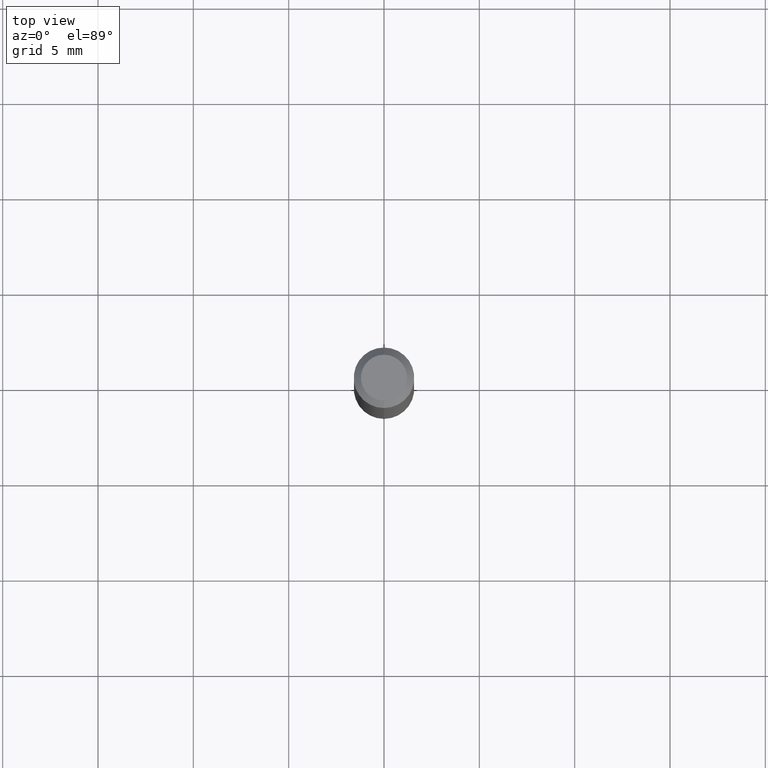
[diagram: clean part render]
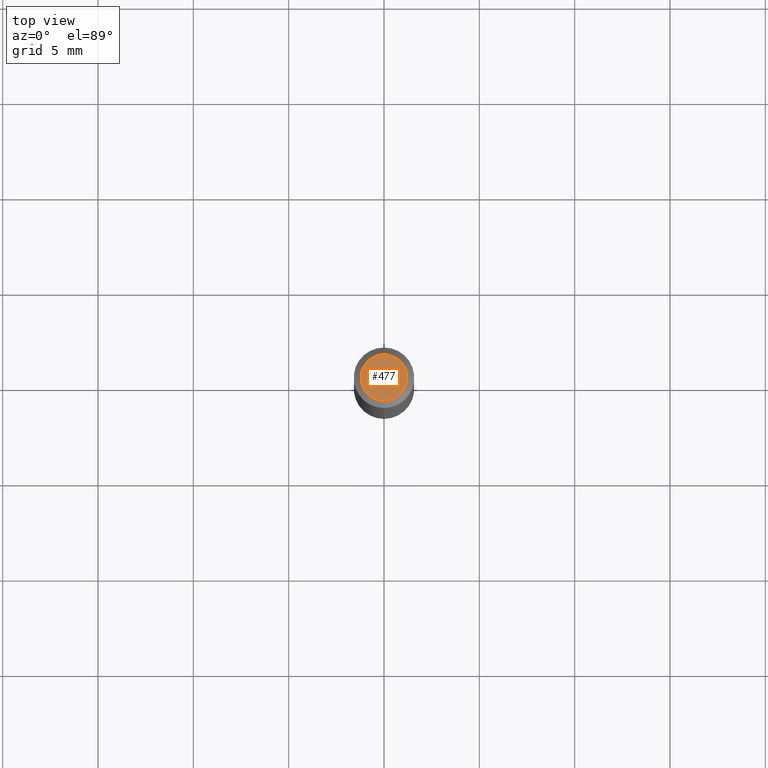
[diagram: same view with one face highlighted and labeled with its STEP entity id]
A machine part, top view. The second image highlights one B-rep face of the part: STEP entity #477.
In plain terms, the highlighted planar face has unit normal (0, -0, -1).
Its self-contained STEP definition (entity closure, byte-faithful):
#26 = ORIENTED_EDGE ( 'NONE', *, *, #427, .T. ) ;
#27 = CARTESIAN_POINT ( 'NONE',  ( -3.773273898774340269E-16, -0.04750000000000000749, 4.390307876817926139E-16 ) ) ;
#34 = CARTESIAN_POINT ( 'NONE',  ( 3.840629472727447874E-16, 0.04750000000000000749, 1.073394357713768884E-16 ) ) ;
#38 = FACE_OUTER_BOUND ( 'NONE', #288, .T. ) ;
#50 = DIRECTION ( 'NONE',  ( -6.982962677686265133E-15, -1.000000000000000000, 3.491487914846480413E-15 ) ) ;
#96 = DIRECTION ( 'NONE',  ( 6.982962677686265922E-15, 1.000000000000000000, -3.491487914846480807E-15 ) ) ;
#115 = DIRECTION ( 'NONE',  ( 2.445464214186550581E-29, -3.491487914846480807E-15, -1.000000000000000000 ) ) ;
#117 = AXIS2_PLACEMENT_3D ( 'NONE', #221, #331, #50 ) ;
#163 = CARTESIAN_POINT ( 'NONE',  ( 3.316907271900976589E-16, 0.04750000000000000749, -2.925312009191548407E-17 ) ) ;
#171 = EDGE_CURVE ( 'NONE', #336, #319, #255, .T. ) ;
#190 = CARTESIAN_POINT ( 'NONE',  ( -6.680644145759176595E-45, 9.538225161093562798E-31, 2.731851117265847450E-16 ) ) ;
#221 = CARTESIAN_POINT ( 'NONE',  ( -6.680644145759176595E-45, 9.538225161093562798E-31, 2.731851117265847450E-16 ) ) ;
#249 = DIRECTION ( 'NONE',  ( -6.982962677686265133E-15, -1.000000000000000000, 3.491487914846480413E-15 ) ) ;
#255 = CIRCLE ( 'NONE', #328, 0.04750000000000000749 ) ;
#288 = EDGE_LOOP ( 'NONE', ( #26, #470 ) ) ;
#319 = VERTEX_POINT ( 'NONE', #34 ) ;
#328 = AXIS2_PLACEMENT_3D ( 'NONE', #190, #501, #249 ) ;
#331 = DIRECTION ( 'NONE',  ( -2.445464214186550861E-29, 3.491487914846480807E-15, 1.000000000000000000 ) ) ;
#336 = VERTEX_POINT ( 'NONE', #27 ) ;
#355 = CIRCLE ( 'NONE', #117, 0.04750000000000000749 ) ;
#411 = AXIS2_PLACEMENT_3D ( 'NONE', #163, #115, #96 ) ;
#427 = EDGE_CURVE ( 'NONE', #319, #336, #355, .T. ) ;
#470 = ORIENTED_EDGE ( 'NONE', *, *, #171, .T. ) ;
#477 = ADVANCED_FACE ( 'NONE', ( #38 ), #516, .F. ) ;
#501 = DIRECTION ( 'NONE',  ( -2.445464214186550861E-29, 3.491487914846480807E-15, 1.000000000000000000 ) ) ;
#516 = PLANE ( 'NONE',  #411 ) ;